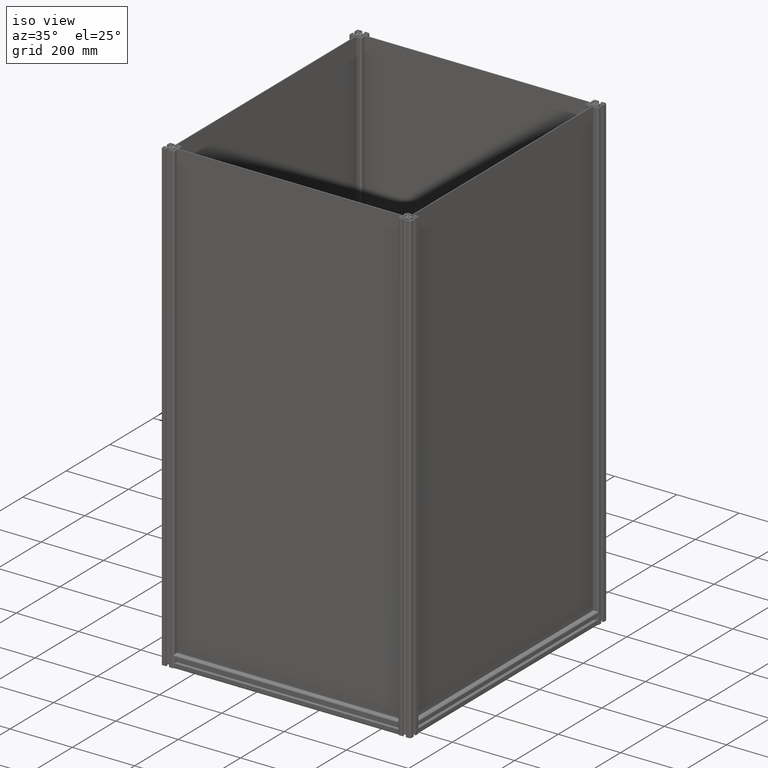
[diagram: clean part render]
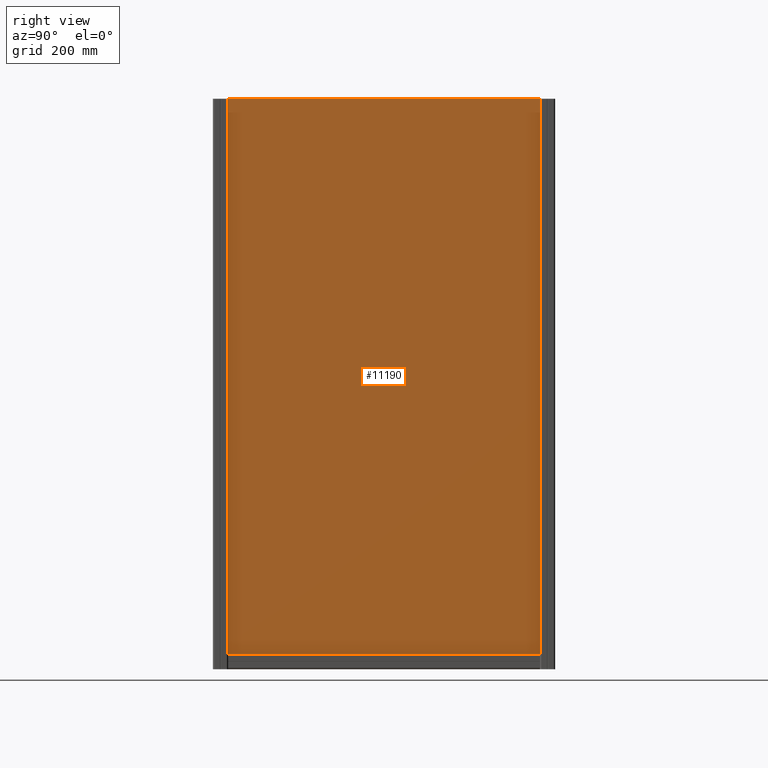
[diagram: tour spotlight — one face highlighted and labeled with its STEP entity id]
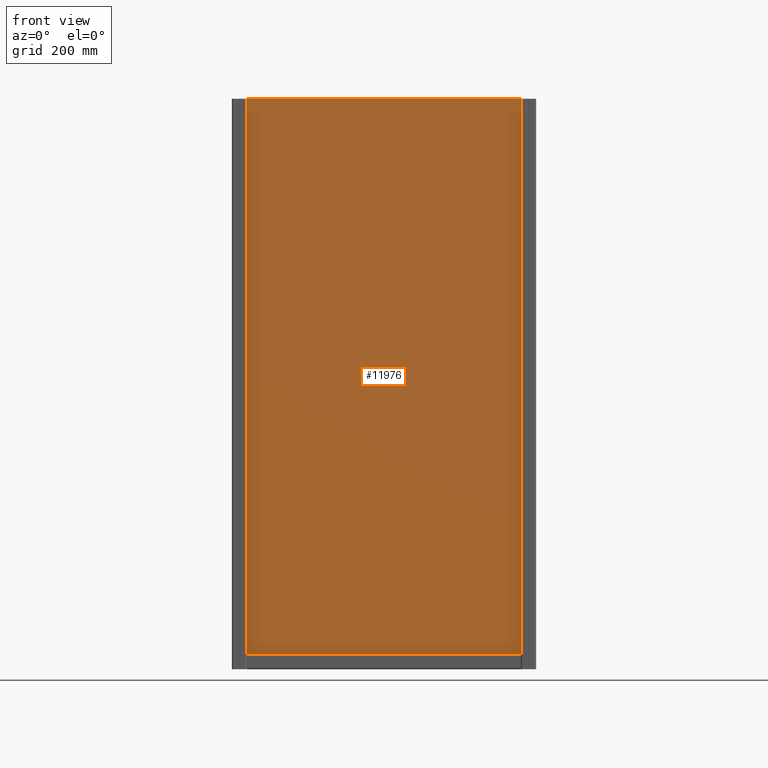
[diagram: tour spotlight — one face highlighted and labeled with its STEP entity id]
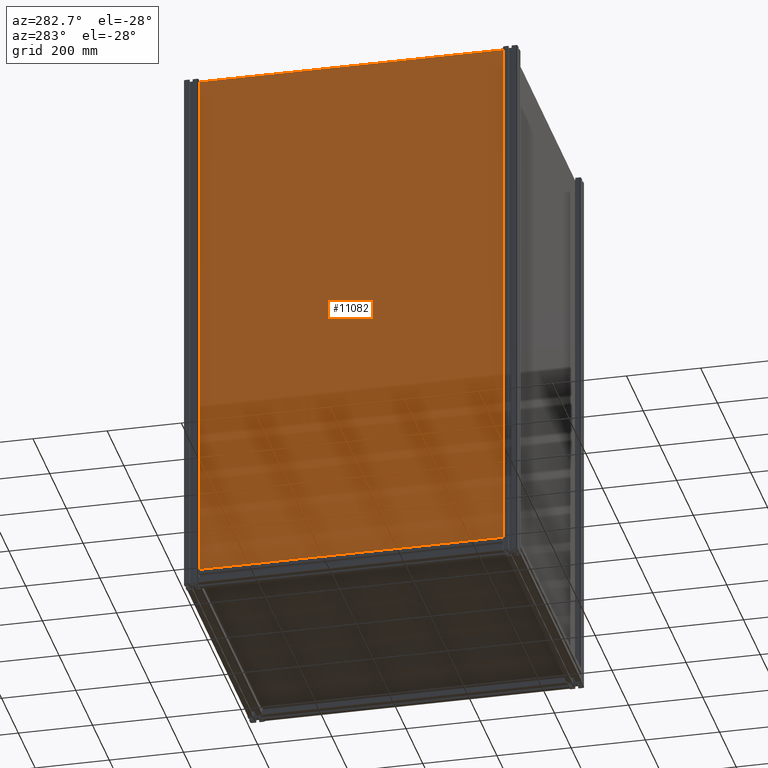
[diagram: tour spotlight — one face highlighted and labeled with its STEP entity id]
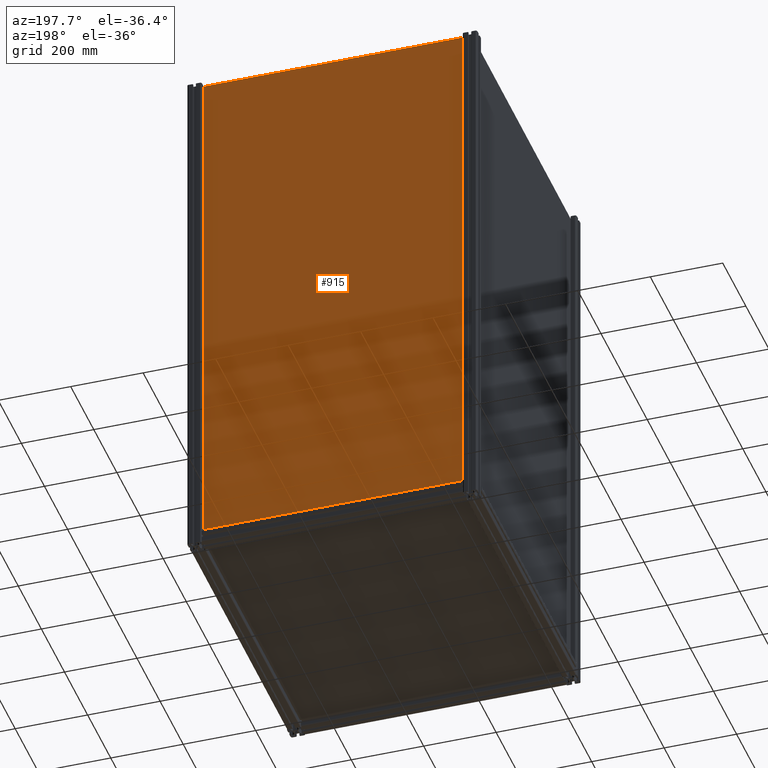
[diagram: tour spotlight — one face highlighted and labeled with its STEP entity id]
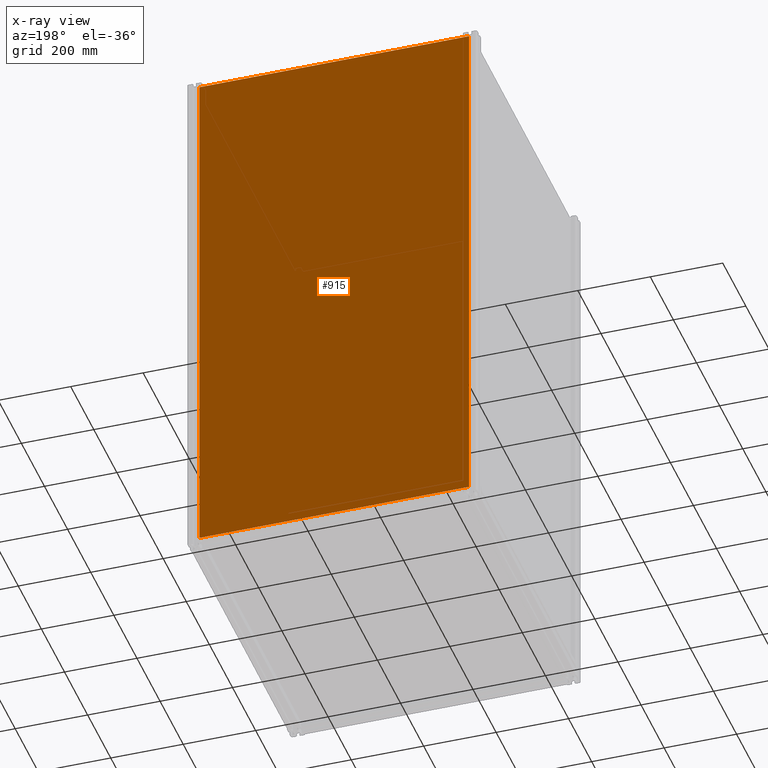
[diagram: x-ray of the same camera — body ghosted, this tour face saturated]
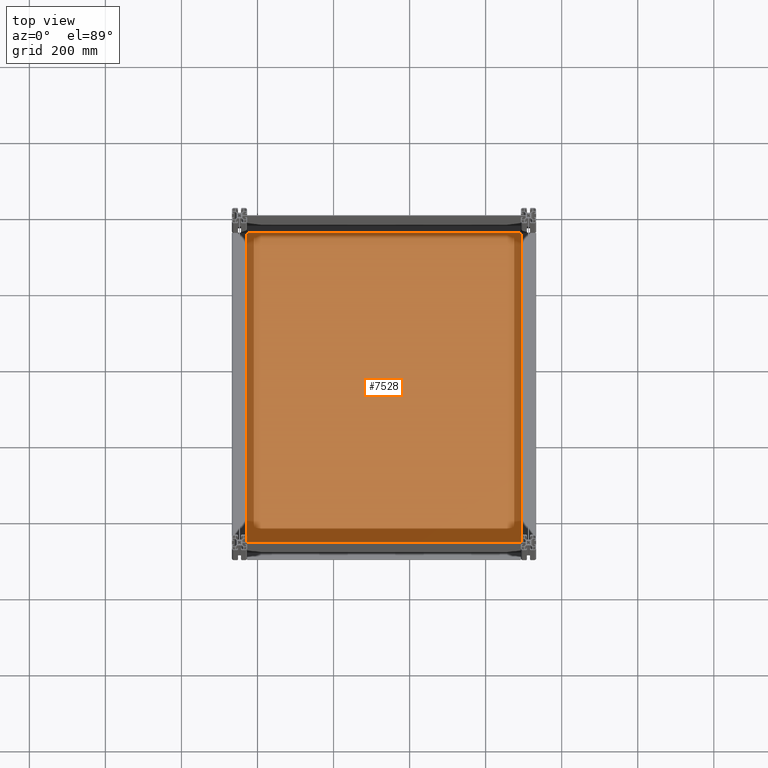
[diagram: tour spotlight — one face highlighted and labeled with its STEP entity id]
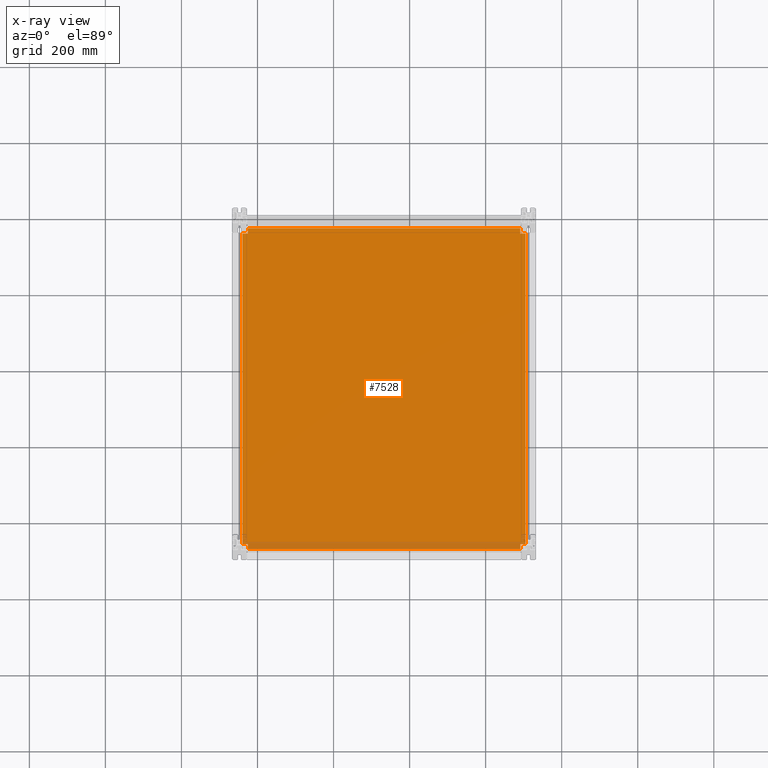
[diagram: x-ray of the same camera — body ghosted, this tour face saturated]
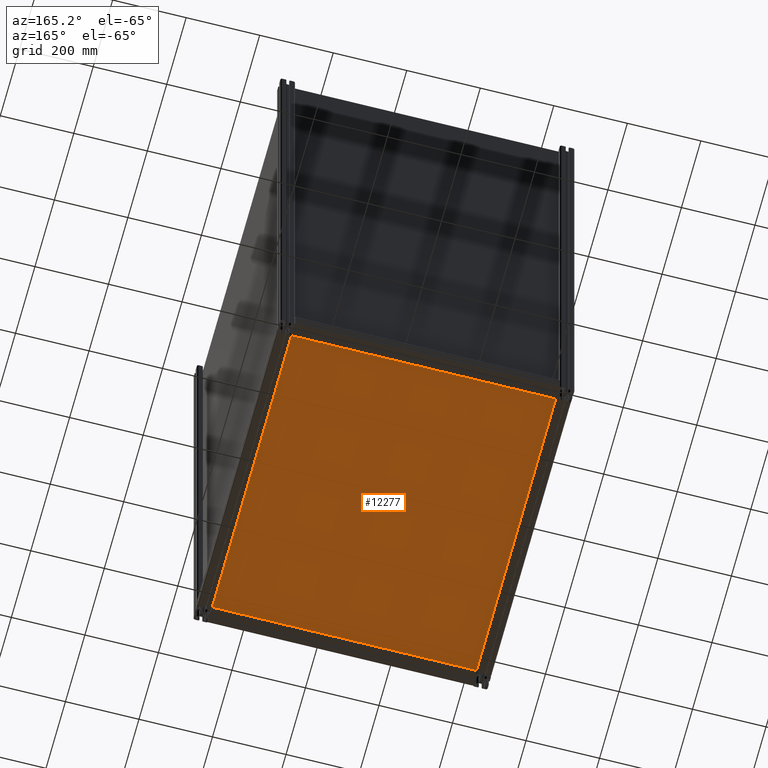
[diagram: tour spotlight — one face highlighted and labeled with its STEP entity id]
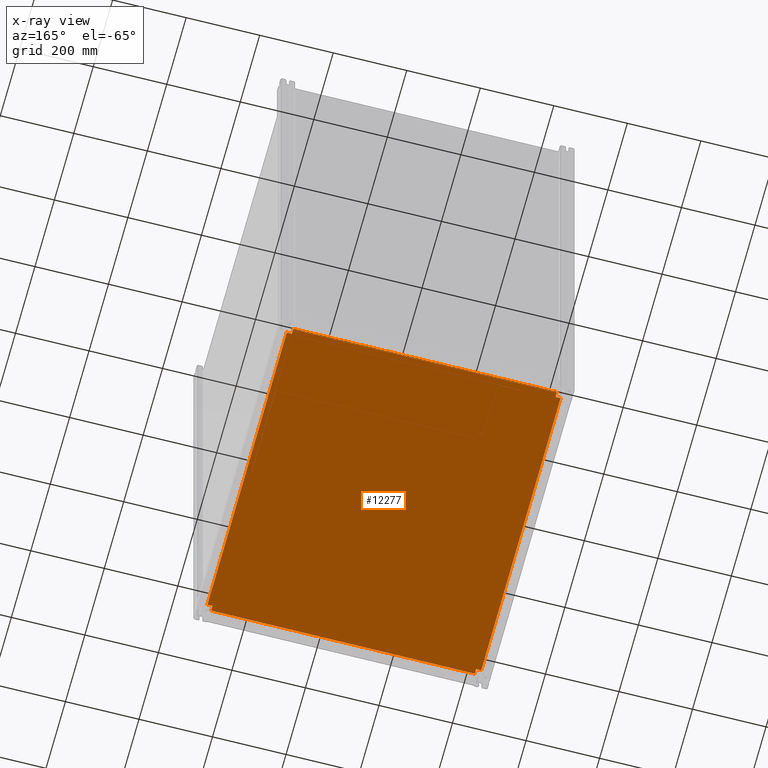
[diagram: x-ray of the same camera — body ghosted, this tour face saturated]
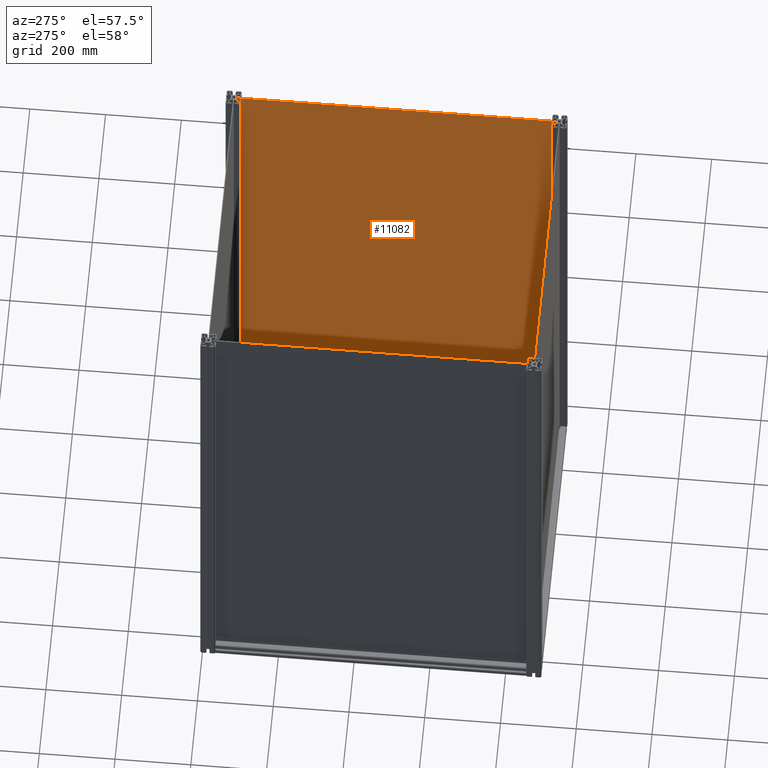
[diagram: tour spotlight — one face highlighted and labeled with its STEP entity id]
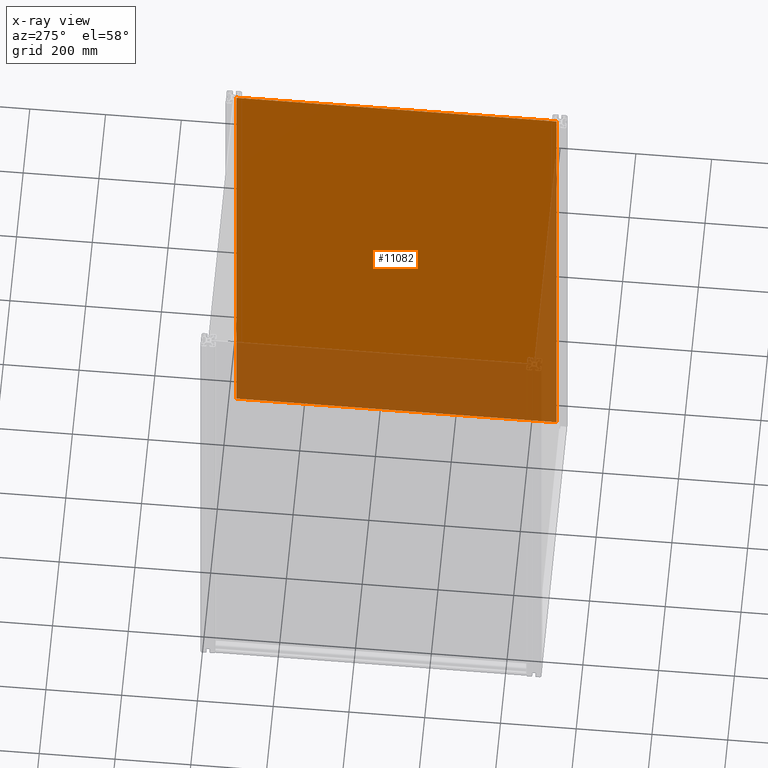
[diagram: x-ray of the same camera — body ghosted, this tour face saturated]
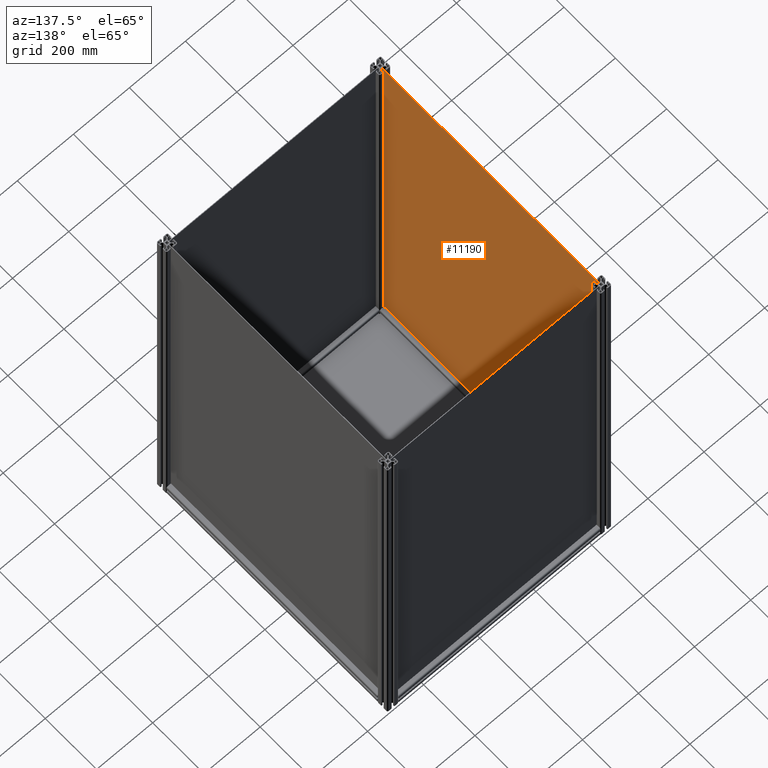
[diagram: tour spotlight — one face highlighted and labeled with its STEP entity id]
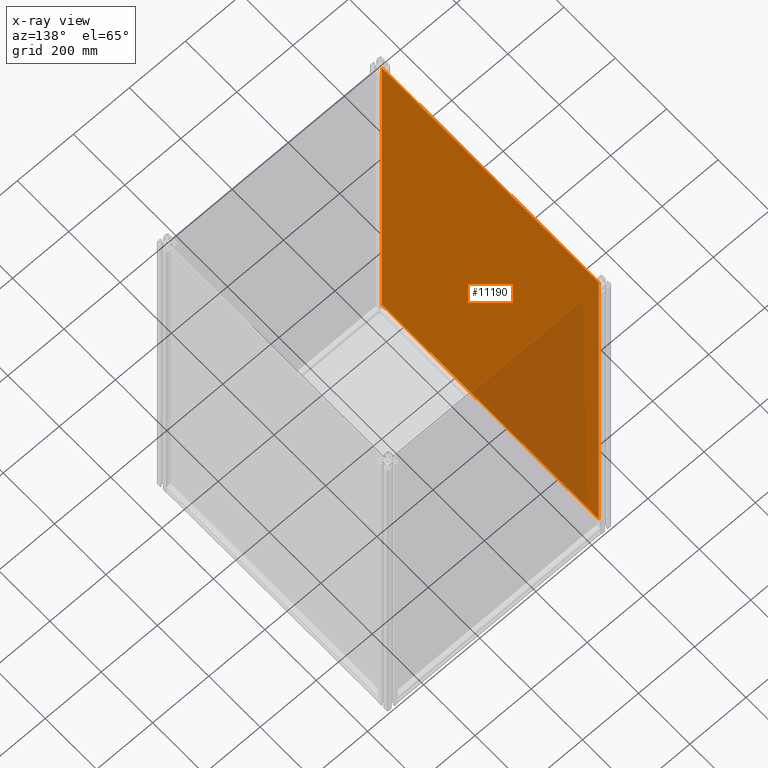
[diagram: x-ray of the same camera — body ghosted, this tour face saturated]
A machine part: a face-by-face anatomy tour. The part has 1230 B-rep faces; the first image is the clean iso view, then the 8 largest visible faces are spotlighted one at a time (largest first), each with its STEP entity span.

Face 1 — right view, entity #11190. In plain terms, the highlighted planar face has unit normal (1, 0, 0).
Definition (entity closure, byte-faithful):
#148 = DIRECTION ( 'NONE',  ( 0.000000000000000000, -1.000000000000000000, 0.000000000000000000 ) ) ;
#404 = EDGE_CURVE ( 'NONE', #16477, #8517, #14682, .T. ) ;
#475 = VERTEX_POINT ( 'NONE', #1220 ) ;
#1220 = CARTESIAN_POINT ( 'NONE',  ( -600.7269624573376632, -1214.526962457337504, 0.000000000000000000 ) ) ;
#1793 = ORIENTED_EDGE ( 'NONE', *, *, #5691, .T. ) ;
#2107 = AXIS2_PLACEMENT_3D ( 'NONE', #5399, #7998, #9301 ) ;
#2956 = ORIENTED_EDGE ( 'NONE', *, *, #3934, .T. ) ;
#3006 = VECTOR ( 'NONE', #8250, 1000.000000000000000 ) ;
#3222 = VECTOR ( 'NONE', #3816, 1000.000000000000000 ) ;
#3816 = DIRECTION ( 'NONE',  ( -1.000000000000000000, 0.000000000000000000, 0.000000000000000000 ) ) ;
#3934 = EDGE_CURVE ( 'NONE', #8517, #475, #4713, .T. ) ;
#4125 = CARTESIAN_POINT ( 'NONE',  ( 244.0730375426620924, 257.8730375426625301, 0.000000000000000000 ) ) ;
#4181 = PLANE ( 'NONE',  #2107 ) ;
#4713 = LINE ( 'NONE', #9331, #10244 ) ;
#5037 = CARTESIAN_POINT ( 'NONE',  ( -600.7269624573376632, -1214.526962457337504, 0.000000000000000000 ) ) ;
#5202 = EDGE_LOOP ( 'NONE', ( #7854, #14146, #2956, #1793 ) ) ;
#5399 = CARTESIAN_POINT ( 'NONE',  ( 0.000000000000000000, 0.000000000000000000, 0.000000000000000000 ) ) ;
#5691 = EDGE_CURVE ( 'NONE', #475, #7600, #13976, .T. ) ;
#5938 = CARTESIAN_POINT ( 'NONE',  ( 244.0730375426622913, -1214.526962457337504, 0.000000000000000000 ) ) ;
#6289 = LINE ( 'NONE', #15047, #11665 ) ;
#7600 = VERTEX_POINT ( 'NONE', #5938 ) ;
#7854 = ORIENTED_EDGE ( 'NONE', *, *, #8125, .T. ) ;
#7998 = DIRECTION ( 'NONE',  ( 0.000000000000000000, 0.000000000000000000, 1.000000000000000000 ) ) ;
#8125 = EDGE_CURVE ( 'NONE', #7600, #16477, #6289, .T. ) ;
#8250 = DIRECTION ( 'NONE',  ( 1.000000000000000000, 0.000000000000000000, 0.000000000000000000 ) ) ;
#8517 = VERTEX_POINT ( 'NONE', #12385 ) ;
#9301 = DIRECTION ( 'NONE',  ( 1.000000000000000000, 0.000000000000000000, 0.000000000000000000 ) ) ;
#9331 = CARTESIAN_POINT ( 'NONE',  ( -600.7269624573378906, 257.8730375426625301, 0.000000000000000000 ) ) ;
#10244 = VECTOR ( 'NONE', #148, 1000.000000000000000 ) ;
#11190 = ADVANCED_FACE ( 'NONE', ( #14982 ), #4181, .T. ) ;
#11665 = VECTOR ( 'NONE', #16253, 1000.000000000000000 ) ;
#12385 = CARTESIAN_POINT ( 'NONE',  ( -600.7269624573378906, 257.8730375426625301, 0.000000000000000000 ) ) ;
#13976 = LINE ( 'NONE', #5037, #3006 ) ;
#14146 = ORIENTED_EDGE ( 'NONE', *, *, #404, .T. ) ;
#14682 = LINE ( 'NONE', #15192, #3222 ) ;
#14982 = FACE_OUTER_BOUND ( 'NONE', #5202, .T. ) ;
#15047 = CARTESIAN_POINT ( 'NONE',  ( 244.0730375426620924, 257.8730375426625301, 0.000000000000000000 ) ) ;
#15192 = CARTESIAN_POINT ( 'NONE',  ( -600.7269624573378906, 257.8730375426625301, 0.000000000000000000 ) ) ;
#16253 = DIRECTION ( 'NONE',  ( -1.319539726361059477E-16, 1.000000000000000000, -0.000000000000000000 ) ) ;
#16477 = VERTEX_POINT ( 'NONE', #4125 ) ;

Face 2 — front view, entity #11976. In plain terms, the highlighted planar face has unit normal (0, 1, 0).
Definition (entity closure, byte-faithful):
#192 = PLANE ( 'NONE',  #12726 ) ;
#1091 = CARTESIAN_POINT ( 'NONE',  ( -600.7269624573378906, 257.8730375426625301, -2.000000000000000000 ) ) ;
#1521 = ORIENTED_EDGE ( 'NONE', *, *, #6502, .F. ) ;
#1592 = ORIENTED_EDGE ( 'NONE', *, *, #6194, .T. ) ;
#2393 = DIRECTION ( 'NONE',  ( -1.000000000000000000, 0.000000000000000000, 0.000000000000000000 ) ) ;
#3443 = DIRECTION ( 'NONE',  ( -1.000000000000000000, 0.000000000000000000, 0.000000000000000000 ) ) ;
#3491 = LINE ( 'NONE', #8691, #14602 ) ;
#3789 = CARTESIAN_POINT ( 'NONE',  ( -28.32696245733845686, -1214.526962457337504, -2.000000000000000000 ) ) ;
#3914 = VECTOR ( 'NONE', #4998, 1000.000000000000000 ) ;
#4016 = DIRECTION ( 'NONE',  ( 0.000000000000000000, 0.000000000000000000, 1.000000000000000000 ) ) ;
#4301 = VERTEX_POINT ( 'NONE', #3789 ) ;
#4860 = VECTOR ( 'NONE', #6814, 1000.000000000000000 ) ;
#4998 = DIRECTION ( 'NONE',  ( 1.508045401555496405E-16, 1.000000000000000000, -0.000000000000000000 ) ) ;
#6194 = EDGE_CURVE ( 'NONE', #13238, #10604, #15321, .T. ) ;
#6343 = VERTEX_POINT ( 'NONE', #12997 ) ;
#6502 = EDGE_CURVE ( 'NONE', #4301, #6343, #9994, .T. ) ;
#6750 = VECTOR ( 'NONE', #3443, 1000.000000000000000 ) ;
#6814 = DIRECTION ( 'NONE',  ( -1.117974313196651756E-16, 1.000000000000000000, 0.000000000000000000 ) ) ;
#6919 = LINE ( 'NONE', #1091, #6750 ) ;
#7178 = CARTESIAN_POINT ( 'NONE',  ( -773.1269624573380952, 257.8730375426625301, -2.000000000000000000 ) ) ;
#7442 = ORIENTED_EDGE ( 'NONE', *, *, #9760, .F. ) ;
#7487 = ORIENTED_EDGE ( 'NONE', *, *, #14082, .T. ) ;
#8691 = CARTESIAN_POINT ( 'NONE',  ( -28.32696245733845686, -1214.526962457337504, -2.000000000000000000 ) ) ;
#9141 = DIRECTION ( 'NONE',  ( 1.000000000000000000, 0.000000000000000000, 0.000000000000000000 ) ) ;
#9760 = EDGE_CURVE ( 'NONE', #6343, #10604, #6919, .T. ) ;
#9948 = EDGE_LOOP ( 'NONE', ( #1592, #7442, #1521, #7487 ) ) ;
#9994 = LINE ( 'NONE', #10221, #4860 ) ;
#10221 = CARTESIAN_POINT ( 'NONE',  ( -28.32696245733819751, 257.8730375426625301, -2.000000000000000000 ) ) ;
#10604 = VERTEX_POINT ( 'NONE', #12556 ) ;
#10699 = CARTESIAN_POINT ( 'NONE',  ( -773.1269624573383226, -1214.526962457337504, -2.000000000000000000 ) ) ;
#11255 = FACE_OUTER_BOUND ( 'NONE', #9948, .T. ) ;
#11923 = CARTESIAN_POINT ( 'NONE',  ( 0.000000000000000000, 0.000000000000000000, -2.000000000000000000 ) ) ;
#11976 = ADVANCED_FACE ( 'NONE', ( #11255 ), #192, .F. ) ;
#12556 = CARTESIAN_POINT ( 'NONE',  ( -773.1269624573380952, 257.8730375426625301, -2.000000000000000000 ) ) ;
#12726 = AXIS2_PLACEMENT_3D ( 'NONE', #11923, #4016, #9141 ) ;
#12997 = CARTESIAN_POINT ( 'NONE',  ( -28.32696245733819751, 257.8730375426625301, -2.000000000000000000 ) ) ;
#13238 = VERTEX_POINT ( 'NONE', #10699 ) ;
#14082 = EDGE_CURVE ( 'NONE', #4301, #13238, #3491, .T. ) ;
#14602 = VECTOR ( 'NONE', #2393, 1000.000000000000000 ) ;
#15321 = LINE ( 'NONE', #7178, #3914 ) ;

Face 3 — auxiliary view, entity #11082. In plain terms, the highlighted planar face has unit normal (1, 0, 0).
Definition (entity closure, byte-faithful):
#608 = CARTESIAN_POINT ( 'NONE',  ( -600.7269624573376632, -1214.526962457337504, -2.000000000000001776 ) ) ;
#1062 = AXIS2_PLACEMENT_3D ( 'NONE', #14311, #6485, #5289 ) ;
#1610 = CARTESIAN_POINT ( 'NONE',  ( 244.0730375426620924, 257.8730375426625301, -2.000000000000001776 ) ) ;
#2019 = CARTESIAN_POINT ( 'NONE',  ( -600.7269624573376632, -1214.526962457337504, -2.000000000000001776 ) ) ;
#2226 = DIRECTION ( 'NONE',  ( 0.000000000000000000, -1.000000000000000000, 0.000000000000000000 ) ) ;
#2728 = EDGE_CURVE ( 'NONE', #13610, #15945, #13859, .T. ) ;
#3709 = LINE ( 'NONE', #10942, #9014 ) ;
#3715 = LINE ( 'NONE', #7875, #9248 ) ;
#3818 = EDGE_CURVE ( 'NONE', #15216, #13610, #16176, .T. ) ;
#3832 = CARTESIAN_POINT ( 'NONE',  ( 244.0730375426622913, -1214.526962457337504, -2.000000000000001776 ) ) ;
#4032 = DIRECTION ( 'NONE',  ( -1.000000000000000000, 0.000000000000000000, 0.000000000000000000 ) ) ;
#4717 = DIRECTION ( 'NONE',  ( -1.000000000000000000, 0.000000000000000000, 0.000000000000000000 ) ) ;
#4867 = VECTOR ( 'NONE', #6737, 1000.000000000000000 ) ;
#5289 = DIRECTION ( 'NONE',  ( 1.000000000000000000, 0.000000000000000000, 0.000000000000000000 ) ) ;
#5883 = EDGE_CURVE ( 'NONE', #14830, #15945, #3709, .T. ) ;
#6485 = DIRECTION ( 'NONE',  ( 0.000000000000000000, 0.000000000000000000, 1.000000000000000000 ) ) ;
#6737 = DIRECTION ( 'NONE',  ( 1.319539726361059477E-16, -1.000000000000000000, 0.000000000000000000 ) ) ;
#7597 = EDGE_LOOP ( 'NONE', ( #13442, #8369, #14359, #7999 ) ) ;
#7699 = PLANE ( 'NONE',  #1062 ) ;
#7875 = CARTESIAN_POINT ( 'NONE',  ( -600.7269624573378906, 257.8730375426625301, -2.000000000000000000 ) ) ;
#7999 = ORIENTED_EDGE ( 'NONE', *, *, #5883, .F. ) ;
#8211 = VECTOR ( 'NONE', #4717, 1000.000000000000000 ) ;
#8369 = ORIENTED_EDGE ( 'NONE', *, *, #3818, .T. ) ;
#8406 = CARTESIAN_POINT ( 'NONE',  ( -600.7269624573378906, 257.8730375426625301, -2.000000000000000000 ) ) ;
#9014 = VECTOR ( 'NONE', #2226, 1000.000000000000000 ) ;
#9248 = VECTOR ( 'NONE', #4032, 1000.000000000000000 ) ;
#10942 = CARTESIAN_POINT ( 'NONE',  ( -600.7269624573378906, 257.8730375426625301, -2.000000000000000000 ) ) ;
#11021 = EDGE_CURVE ( 'NONE', #15216, #14830, #3715, .T. ) ;
#11082 = ADVANCED_FACE ( 'NONE', ( #14952 ), #7699, .F. ) ;
#13442 = ORIENTED_EDGE ( 'NONE', *, *, #11021, .F. ) ;
#13610 = VERTEX_POINT ( 'NONE', #3832 ) ;
#13859 = LINE ( 'NONE', #608, #8211 ) ;
#14311 = CARTESIAN_POINT ( 'NONE',  ( 0.000000000000000000, 0.000000000000000000, -2.000000000000000000 ) ) ;
#14359 = ORIENTED_EDGE ( 'NONE', *, *, #2728, .T. ) ;
#14830 = VERTEX_POINT ( 'NONE', #8406 ) ;
#14952 = FACE_OUTER_BOUND ( 'NONE', #7597, .T. ) ;
#15216 = VERTEX_POINT ( 'NONE', #16476 ) ;
#15945 = VERTEX_POINT ( 'NONE', #2019 ) ;
#16176 = LINE ( 'NONE', #1610, #4867 ) ;
#16476 = CARTESIAN_POINT ( 'NONE',  ( 244.0730375426620924, 257.8730375426625301, -2.000000000000001776 ) ) ;

Face 4 — auxiliary view, entity #915. An x-ray twin of the same camera follows (body ghosted, this face saturated) — the face is partly hidden behind the body. In plain terms, the highlighted planar face has unit normal (0, 1, 0).
Definition (entity closure, byte-faithful):
#757 = EDGE_CURVE ( 'NONE', #15804, #3437, #9700, .T. ) ;
#835 = DIRECTION ( 'NONE',  ( -1.000000000000000000, 0.000000000000000000, 0.000000000000000000 ) ) ;
#915 = ADVANCED_FACE ( 'NONE', ( #1769 ), #1994, .T. ) ;
#1769 = FACE_OUTER_BOUND ( 'NONE', #12769, .T. ) ;
#1817 = ORIENTED_EDGE ( 'NONE', *, *, #2600, .T. ) ;
#1994 = PLANE ( 'NONE',  #12405 ) ;
#2359 = CARTESIAN_POINT ( 'NONE',  ( -28.32696245733819751, 257.8730375426625301, 0.000000000000000000 ) ) ;
#2477 = VECTOR ( 'NONE', #11883, 1000.000000000000000 ) ;
#2504 = ORIENTED_EDGE ( 'NONE', *, *, #13893, .T. ) ;
#2600 = EDGE_CURVE ( 'NONE', #15431, #3437, #13492, .T. ) ;
#3238 = CARTESIAN_POINT ( 'NONE',  ( 0.000000000000000000, 0.000000000000000000, 0.000000000000000000 ) ) ;
#3437 = VERTEX_POINT ( 'NONE', #13404 ) ;
#4046 = CARTESIAN_POINT ( 'NONE',  ( -773.1269624573383226, -1214.526962457337504, 0.000000000000000000 ) ) ;
#5785 = DIRECTION ( 'NONE',  ( 0.000000000000000000, 0.000000000000000000, 1.000000000000000000 ) ) ;
#6088 = CARTESIAN_POINT ( 'NONE',  ( -28.32696245733845686, -1214.526962457337504, 0.000000000000000000 ) ) ;
#6738 = CARTESIAN_POINT ( 'NONE',  ( -600.7269624573378906, 257.8730375426625301, 0.000000000000000000 ) ) ;
#7127 = DIRECTION ( 'NONE',  ( 1.000000000000000000, 0.000000000000000000, 0.000000000000000000 ) ) ;
#7402 = ORIENTED_EDGE ( 'NONE', *, *, #757, .F. ) ;
#9044 = VECTOR ( 'NONE', #16448, 1000.000000000000000 ) ;
#9700 = LINE ( 'NONE', #12061, #15164 ) ;
#11883 = DIRECTION ( 'NONE',  ( -1.000000000000000000, 0.000000000000000000, 0.000000000000000000 ) ) ;
#12061 = CARTESIAN_POINT ( 'NONE',  ( -773.1269624573380952, 257.8730375426625301, 0.000000000000000000 ) ) ;
#12405 = AXIS2_PLACEMENT_3D ( 'NONE', #3238, #5785, #7127 ) ;
#12763 = CARTESIAN_POINT ( 'NONE',  ( -28.32696245733845686, -1214.526962457337504, 0.000000000000000000 ) ) ;
#12769 = EDGE_LOOP ( 'NONE', ( #1817, #7402, #13167, #2504 ) ) ;
#13167 = ORIENTED_EDGE ( 'NONE', *, *, #15254, .F. ) ;
#13404 = CARTESIAN_POINT ( 'NONE',  ( -773.1269624573380952, 257.8730375426625301, 0.000000000000000000 ) ) ;
#13492 = LINE ( 'NONE', #6738, #2477 ) ;
#13893 = EDGE_CURVE ( 'NONE', #15044, #15431, #15095, .T. ) ;
#13900 = VECTOR ( 'NONE', #835, 1000.000000000000000 ) ;
#14153 = CARTESIAN_POINT ( 'NONE',  ( -28.32696245733819751, 257.8730375426625301, 0.000000000000000000 ) ) ;
#14702 = LINE ( 'NONE', #6088, #13900 ) ;
#15044 = VERTEX_POINT ( 'NONE', #12763 ) ;
#15095 = LINE ( 'NONE', #2359, #9044 ) ;
#15164 = VECTOR ( 'NONE', #15889, 1000.000000000000000 ) ;
#15254 = EDGE_CURVE ( 'NONE', #15044, #15804, #14702, .T. ) ;
#15431 = VERTEX_POINT ( 'NONE', #14153 ) ;
#15804 = VERTEX_POINT ( 'NONE', #4046 ) ;
#15889 = DIRECTION ( 'NONE',  ( 1.508045401555496405E-16, 1.000000000000000000, -0.000000000000000000 ) ) ;
#16448 = DIRECTION ( 'NONE',  ( -1.117974313196651756E-16, 1.000000000000000000, 0.000000000000000000 ) ) ;

Face 5 — top view, entity #7528. An x-ray twin of the same camera follows (body ghosted, this face saturated) — the face is partly hidden behind the body. In plain terms, the highlighted planar face has unit normal (0, 0, -1).
Definition (entity closure, byte-faithful):
#698 = ORIENTED_EDGE ( 'NONE', *, *, #15027, .T. ) ;
#994 = VERTEX_POINT ( 'NONE', #11274 ) ;
#1080 = ORIENTED_EDGE ( 'NONE', *, *, #1408, .F. ) ;
#1094 = CARTESIAN_POINT ( 'NONE',  ( 130.0730375426619787, 243.8730375426625301, -2.000000000000000000 ) ) ;
#1170 = DIRECTION ( 'NONE',  ( 0.000000000000000000, -1.000000000000000000, 0.000000000000000000 ) ) ;
#1187 = CARTESIAN_POINT ( 'NONE',  ( 0.000000000000000000, 243.8730375426625301, -2.000000000000000000 ) ) ;
#1265 = VECTOR ( 'NONE', #4548, 1000.000000000000000 ) ;
#1324 = LINE ( 'NONE', #12489, #6968 ) ;
#1394 = LINE ( 'NONE', #4956, #6674 ) ;
#1408 = EDGE_CURVE ( 'NONE', #7529, #13920, #6251, .T. ) ;
#1663 = EDGE_CURVE ( 'NONE', #994, #4091, #6386, .T. ) ;
#1728 = EDGE_CURVE ( 'NONE', #7077, #11722, #1394, .T. ) ;
#2224 = DIRECTION ( 'NONE',  ( 0.000000000000000000, -1.000000000000000000, 0.000000000000000000 ) ) ;
#2347 = DIRECTION ( 'NONE',  ( 0.000000000000000000, 1.000000000000000000, 0.000000000000000000 ) ) ;
#2498 = DIRECTION ( 'NONE',  ( 1.000000000000000000, 0.000000000000000000, -0.000000000000000000 ) ) ;
#2594 = CARTESIAN_POINT ( 'NONE',  ( -586.7269624573378906, 0.000000000000000000, -2.000000000000000000 ) ) ;
#3091 = CARTESIAN_POINT ( 'NONE',  ( 130.0730375426619787, -586.9269624573374813, -2.000000000000001776 ) ) ;
#3141 = VECTOR ( 'NONE', #15128, 1000.000000000000000 ) ;
#3324 = LINE ( 'NONE', #11931, #8876 ) ;
#3578 = CARTESIAN_POINT ( 'NONE',  ( 0.000000000000000000, 243.8730375426625301, -2.000000000000000000 ) ) ;
#3779 = CARTESIAN_POINT ( 'NONE',  ( 130.0730375426619787, 0.000000000000000000, -2.000000000000000000 ) ) ;
#3948 = DIRECTION ( 'NONE',  ( 0.000000000000000000, 0.000000000000000000, 1.000000000000000000 ) ) ;
#4091 = VERTEX_POINT ( 'NONE', #13305 ) ;
#4146 = CARTESIAN_POINT ( 'NONE',  ( -600.7269624573378906, 257.8730375426625301, -2.000000000000000000 ) ) ;
#4151 = VECTOR ( 'NONE', #10176, 1000.000000000000000 ) ;
#4154 = CARTESIAN_POINT ( 'NONE',  ( -600.7269624573378906, 243.8730375426625301, -2.000000000000000000 ) ) ;
#4210 = CARTESIAN_POINT ( 'NONE',  ( -586.7269624573378906, 257.8730375426625301, -2.000000000000000000 ) ) ;
#4258 = LINE ( 'NONE', #7654, #4151 ) ;
#4548 = DIRECTION ( 'NONE',  ( 1.000000000000000000, 0.000000000000000000, -0.000000000000000000 ) ) ;
#4652 = CARTESIAN_POINT ( 'NONE',  ( 144.0730375426619787, 257.8730375426625301, -2.000000000000001776 ) ) ;
#4852 = LINE ( 'NONE', #2594, #15805 ) ;
#4956 = CARTESIAN_POINT ( 'NONE',  ( 130.0730375426619787, 0.000000000000000000, -2.000000000000000000 ) ) ;
#5309 = CARTESIAN_POINT ( 'NONE',  ( -586.7269624573378906, 0.000000000000000000, -2.000000000000000000 ) ) ;
#5449 = VECTOR ( 'NONE', #2347, 1000.000000000000000 ) ;
#5480 = EDGE_LOOP ( 'NONE', ( #1080, #7255, #6113, #11712, #7538, #11598, #7080, #5491, #16236, #6053, #11941, #698 ) ) ;
#5491 = ORIENTED_EDGE ( 'NONE', *, *, #14518, .T. ) ;
#5868 = EDGE_CURVE ( 'NONE', #11036, #10411, #3324, .T. ) ;
#6053 = ORIENTED_EDGE ( 'NONE', *, *, #5868, .F. ) ;
#6113 = ORIENTED_EDGE ( 'NONE', *, *, #14494, .T. ) ;
#6251 = LINE ( 'NONE', #4146, #11864 ) ;
#6319 = VERTEX_POINT ( 'NONE', #15552 ) ;
#6386 = LINE ( 'NONE', #4652, #11947 ) ;
#6459 = FACE_OUTER_BOUND ( 'NONE', #5480, .T. ) ;
#6627 = CARTESIAN_POINT ( 'NONE',  ( -586.7269624573378906, 243.8730375426625301, -2.000000000000000000 ) ) ;
#6674 = VECTOR ( 'NONE', #7595, 1000.000000000000000 ) ;
#6905 = DIRECTION ( 'NONE',  ( 0.000000000000000000, -1.000000000000000000, 0.000000000000000000 ) ) ;
#6922 = VERTEX_POINT ( 'NONE', #10066 ) ;
#6951 = LINE ( 'NONE', #3578, #1265 ) ;
#6968 = VECTOR ( 'NONE', #13758, 1000.000000000000000 ) ;
#7077 = VERTEX_POINT ( 'NONE', #7092 ) ;
#7080 = ORIENTED_EDGE ( 'NONE', *, *, #13713, .T. ) ;
#7092 = CARTESIAN_POINT ( 'NONE',  ( 130.0730375426619787, -572.9269624573374813, -2.000000000000000000 ) ) ;
#7255 = ORIENTED_EDGE ( 'NONE', *, *, #16396, .T. ) ;
#7528 = ADVANCED_FACE ( 'NONE', ( #6459 ), #9407, .F. ) ;
#7529 = VERTEX_POINT ( 'NONE', #16525 ) ;
#7538 = ORIENTED_EDGE ( 'NONE', *, *, #8193, .T. ) ;
#7595 = DIRECTION ( 'NONE',  ( 0.000000000000000000, -1.000000000000000000, 0.000000000000000000 ) ) ;
#7654 = CARTESIAN_POINT ( 'NONE',  ( 0.000000000000000000, -572.9269624573374813, -2.000000000000000000 ) ) ;
#7789 = DIRECTION ( 'NONE',  ( 1.000000000000000000, 0.000000000000000000, 0.000000000000000000 ) ) ;
#8193 = EDGE_CURVE ( 'NONE', #4091, #7077, #4258, .T. ) ;
#8306 = LINE ( 'NONE', #3779, #8333 ) ;
#8333 = VECTOR ( 'NONE', #1170, 1000.000000000000000 ) ;
#8678 = LINE ( 'NONE', #9526, #3141 ) ;
#8876 = VECTOR ( 'NONE', #6905, 1000.000000000000000 ) ;
#9407 = PLANE ( 'NONE',  #15993 ) ;
#9526 = CARTESIAN_POINT ( 'NONE',  ( -600.7269624573378906, -586.9269624573374813, -2.000000000000001776 ) ) ;
#9680 = LINE ( 'NONE', #1187, #15232 ) ;
#10066 = CARTESIAN_POINT ( 'NONE',  ( -586.7269624573378906, -572.9269624573374813, -2.000000000000000000 ) ) ;
#10091 = DIRECTION ( 'NONE',  ( 0.000000000000000000, 1.000000000000000000, 0.000000000000000000 ) ) ;
#10176 = DIRECTION ( 'NONE',  ( -1.000000000000000000, -0.000000000000000000, 0.000000000000000000 ) ) ;
#10215 = CARTESIAN_POINT ( 'NONE',  ( 0.000000000000000000, 0.000000000000000000, -2.000000000000000000 ) ) ;
#10411 = VERTEX_POINT ( 'NONE', #10985 ) ;
#10905 = VERTEX_POINT ( 'NONE', #1094 ) ;
#10958 = LINE ( 'NONE', #5309, #5449 ) ;
#10985 = CARTESIAN_POINT ( 'NONE',  ( -600.7269624573378906, -572.9269624573374813, -2.000000000000000000 ) ) ;
#11036 = VERTEX_POINT ( 'NONE', #4154 ) ;
#11274 = CARTESIAN_POINT ( 'NONE',  ( 144.0730375426619787, 243.8730375426625301, -2.000000000000001776 ) ) ;
#11598 = ORIENTED_EDGE ( 'NONE', *, *, #1728, .T. ) ;
#11712 = ORIENTED_EDGE ( 'NONE', *, *, #1663, .T. ) ;
#11722 = VERTEX_POINT ( 'NONE', #3091 ) ;
#11864 = VECTOR ( 'NONE', #14854, 1000.000000000000000 ) ;
#11931 = CARTESIAN_POINT ( 'NONE',  ( -600.7269624573378906, 257.8730375426625301, -2.000000000000000000 ) ) ;
#11941 = ORIENTED_EDGE ( 'NONE', *, *, #15613, .T. ) ;
#11947 = VECTOR ( 'NONE', #2224, 1000.000000000000000 ) ;
#12489 = CARTESIAN_POINT ( 'NONE',  ( 0.000000000000000000, -572.9269624573374813, -2.000000000000000000 ) ) ;
#13305 = CARTESIAN_POINT ( 'NONE',  ( 144.0730375426619787, -572.9269624573374813, -2.000000000000001776 ) ) ;
#13713 = EDGE_CURVE ( 'NONE', #11722, #6319, #8678, .T. ) ;
#13758 = DIRECTION ( 'NONE',  ( -1.000000000000000000, -0.000000000000000000, 0.000000000000000000 ) ) ;
#13904 = VERTEX_POINT ( 'NONE', #6627 ) ;
#13920 = VERTEX_POINT ( 'NONE', #4210 ) ;
#14494 = EDGE_CURVE ( 'NONE', #10905, #994, #9680, .T. ) ;
#14518 = EDGE_CURVE ( 'NONE', #6319, #6922, #4852, .T. ) ;
#14854 = DIRECTION ( 'NONE',  ( -1.000000000000000000, 0.000000000000000000, 0.000000000000000000 ) ) ;
#15027 = EDGE_CURVE ( 'NONE', #13904, #13920, #10958, .T. ) ;
#15128 = DIRECTION ( 'NONE',  ( -1.000000000000000000, 0.000000000000000000, 0.000000000000000000 ) ) ;
#15232 = VECTOR ( 'NONE', #2498, 1000.000000000000000 ) ;
#15552 = CARTESIAN_POINT ( 'NONE',  ( -586.7269624573378906, -586.9269624573374813, -2.000000000000001776 ) ) ;
#15613 = EDGE_CURVE ( 'NONE', #11036, #13904, #6951, .T. ) ;
#15684 = EDGE_CURVE ( 'NONE', #6922, #10411, #1324, .T. ) ;
#15805 = VECTOR ( 'NONE', #10091, 1000.000000000000000 ) ;
#15993 = AXIS2_PLACEMENT_3D ( 'NONE', #10215, #3948, #7789 ) ;
#16236 = ORIENTED_EDGE ( 'NONE', *, *, #15684, .T. ) ;
#16396 = EDGE_CURVE ( 'NONE', #7529, #10905, #8306, .T. ) ;
#16525 = CARTESIAN_POINT ( 'NONE',  ( 130.0730375426619787, 257.8730375426625301, -2.000000000000000000 ) ) ;

Face 6 — auxiliary view, entity #12277. An x-ray twin of the same camera follows (body ghosted, this face saturated) — the face is partly hidden behind the body. In plain terms, the highlighted planar face has unit normal (0, 0, -1).
Definition (entity closure, byte-faithful):
#112 = PLANE ( 'NONE',  #3041 ) ;
#259 = CARTESIAN_POINT ( 'NONE',  ( -600.7269624573378906, 243.8730375426625301, 0.000000000000000000 ) ) ;
#739 = LINE ( 'NONE', #13423, #6270 ) ;
#1145 = LINE ( 'NONE', #3873, #11992 ) ;
#1148 = ORIENTED_EDGE ( 'NONE', *, *, #14264, .F. ) ;
#1200 = VECTOR ( 'NONE', #15234, 1000.000000000000000 ) ;
#1420 = LINE ( 'NONE', #12548, #12524 ) ;
#1816 = LINE ( 'NONE', #8404, #1877 ) ;
#1877 = VECTOR ( 'NONE', #5921, 1000.000000000000000 ) ;
#1939 = VERTEX_POINT ( 'NONE', #3519 ) ;
#2026 = EDGE_CURVE ( 'NONE', #9263, #1939, #1420, .T. ) ;
#2234 = ORIENTED_EDGE ( 'NONE', *, *, #3410, .T. ) ;
#2281 = ORIENTED_EDGE ( 'NONE', *, *, #4017, .F. ) ;
#2325 = EDGE_CURVE ( 'NONE', #16010, #13176, #1816, .T. ) ;
#2745 = CARTESIAN_POINT ( 'NONE',  ( -600.7269624573378906, 243.8730375426625301, 0.000000000000000000 ) ) ;
#2860 = ORIENTED_EDGE ( 'NONE', *, *, #4796, .T. ) ;
#3041 = AXIS2_PLACEMENT_3D ( 'NONE', #13875, #12739, #7583 ) ;
#3410 = EDGE_CURVE ( 'NONE', #6398, #16040, #14953, .T. ) ;
#3519 = CARTESIAN_POINT ( 'NONE',  ( -600.7269624573378906, -572.9269624573374813, 0.000000000000000000 ) ) ;
#3859 = VECTOR ( 'NONE', #13189, 1000.000000000000000 ) ;
#3873 = CARTESIAN_POINT ( 'NONE',  ( -600.7269624573378906, 257.8730375426625301, 0.000000000000000000 ) ) ;
#4012 = DIRECTION ( 'NONE',  ( 1.000000000000000000, 0.000000000000000000, 0.000000000000000000 ) ) ;
#4017 = EDGE_CURVE ( 'NONE', #13493, #9292, #5487, .T. ) ;
#4332 = EDGE_CURVE ( 'NONE', #6398, #9263, #16407, .T. ) ;
#4498 = DIRECTION ( 'NONE',  ( -1.000000000000000000, -0.000000000000000000, -0.000000000000000000 ) ) ;
#4738 = VERTEX_POINT ( 'NONE', #13385 ) ;
#4796 = EDGE_CURVE ( 'NONE', #8652, #11730, #1145, .T. ) ;
#4814 = CARTESIAN_POINT ( 'NONE',  ( 130.0730375426619787, 257.8730375426625301, 0.000000000000000000 ) ) ;
#4916 = DIRECTION ( 'NONE',  ( -0.000000000000000000, 1.000000000000000000, -0.000000000000000000 ) ) ;
#5129 = CARTESIAN_POINT ( 'NONE',  ( 130.0730375426619787, 243.8730375426625301, 0.000000000000000000 ) ) ;
#5352 = VECTOR ( 'NONE', #4916, 1000.000000000000000 ) ;
#5354 = ORIENTED_EDGE ( 'NONE', *, *, #7413, .F. ) ;
#5392 = DIRECTION ( 'NONE',  ( 0.000000000000000000, -1.000000000000000000, 0.000000000000000000 ) ) ;
#5417 = ORIENTED_EDGE ( 'NONE', *, *, #4332, .F. ) ;
#5468 = CARTESIAN_POINT ( 'NONE',  ( 144.0730375426619787, 243.8730375426625301, 0.000000000000000000 ) ) ;
#5487 = LINE ( 'NONE', #259, #11146 ) ;
#5863 = DIRECTION ( 'NONE',  ( 0.000000000000000000, -1.000000000000000000, 0.000000000000000000 ) ) ;
#5921 = DIRECTION ( 'NONE',  ( -0.000000000000000000, 1.000000000000000000, -0.000000000000000000 ) ) ;
#5984 = EDGE_CURVE ( 'NONE', #13493, #1939, #14302, .T. ) ;
#6270 = VECTOR ( 'NONE', #5392, 1000.000000000000000 ) ;
#6398 = VERTEX_POINT ( 'NONE', #10253 ) ;
#6433 = LINE ( 'NONE', #11767, #1200 ) ;
#6778 = ORIENTED_EDGE ( 'NONE', *, *, #14570, .F. ) ;
#7032 = CARTESIAN_POINT ( 'NONE',  ( 144.0730375426619787, -572.9269624573374813, 0.000000000000000000 ) ) ;
#7188 = ORIENTED_EDGE ( 'NONE', *, *, #15302, .F. ) ;
#7413 = EDGE_CURVE ( 'NONE', #4738, #16040, #739, .T. ) ;
#7583 = DIRECTION ( 'NONE',  ( 1.000000000000000000, 0.000000000000000000, 0.000000000000000000 ) ) ;
#8371 = ORIENTED_EDGE ( 'NONE', *, *, #2026, .F. ) ;
#8404 = CARTESIAN_POINT ( 'NONE',  ( 144.0730375426619787, 257.8730375426625301, 0.000000000000000000 ) ) ;
#8545 = ORIENTED_EDGE ( 'NONE', *, *, #5984, .T. ) ;
#8622 = CARTESIAN_POINT ( 'NONE',  ( -600.7269624573378906, 257.8730375426625301, 0.000000000000000000 ) ) ;
#8652 = VERTEX_POINT ( 'NONE', #10743 ) ;
#8738 = EDGE_LOOP ( 'NONE', ( #1148, #2860, #7188, #2281, #8545, #8371, #5417, #2234, #5354, #13883, #8823, #6778 ) ) ;
#8823 = ORIENTED_EDGE ( 'NONE', *, *, #2325, .T. ) ;
#9126 = VECTOR ( 'NONE', #13780, 1000.000000000000000 ) ;
#9203 = CARTESIAN_POINT ( 'NONE',  ( -600.7269624573378906, -586.9269624573374813, 0.000000000000000000 ) ) ;
#9263 = VERTEX_POINT ( 'NONE', #14562 ) ;
#9292 = VERTEX_POINT ( 'NONE', #10780 ) ;
#9710 = LINE ( 'NONE', #4814, #15538 ) ;
#10205 = LINE ( 'NONE', #5129, #16250 ) ;
#10253 = CARTESIAN_POINT ( 'NONE',  ( -586.7269624573378906, -586.9269624573374813, 0.000000000000000000 ) ) ;
#10743 = CARTESIAN_POINT ( 'NONE',  ( 130.0730375426619787, 257.8730375426625301, 0.000000000000000000 ) ) ;
#10780 = CARTESIAN_POINT ( 'NONE',  ( -586.7269624573378906, 243.8730375426625301, 0.000000000000000000 ) ) ;
#11146 = VECTOR ( 'NONE', #15735, 1000.000000000000000 ) ;
#11548 = FACE_OUTER_BOUND ( 'NONE', #8738, .T. ) ;
#11650 = CARTESIAN_POINT ( 'NONE',  ( -586.7269624573378906, 257.8730375426625301, 0.000000000000000000 ) ) ;
#11730 = VERTEX_POINT ( 'NONE', #11650 ) ;
#11767 = CARTESIAN_POINT ( 'NONE',  ( 130.0730375426619787, -572.9269624573374813, 0.000000000000000000 ) ) ;
#11992 = VECTOR ( 'NONE', #15129, 1000.000000000000000 ) ;
#12277 = ADVANCED_FACE ( 'NONE', ( #11548 ), #112, .T. ) ;
#12453 = CARTESIAN_POINT ( 'NONE',  ( -586.7269624573378906, 257.8730375426625301, 0.000000000000000000 ) ) ;
#12524 = VECTOR ( 'NONE', #4498, 1000.000000000000000 ) ;
#12548 = CARTESIAN_POINT ( 'NONE',  ( -600.7269624573378906, -572.9269624573374813, 0.000000000000000000 ) ) ;
#12667 = EDGE_CURVE ( 'NONE', #16010, #4738, #6433, .T. ) ;
#12739 = DIRECTION ( 'NONE',  ( 0.000000000000000000, 0.000000000000000000, 1.000000000000000000 ) ) ;
#13176 = VERTEX_POINT ( 'NONE', #5468 ) ;
#13189 = DIRECTION ( 'NONE',  ( 1.000000000000000000, 0.000000000000000000, 0.000000000000000000 ) ) ;
#13385 = CARTESIAN_POINT ( 'NONE',  ( 130.0730375426619787, -572.9269624573374813, 0.000000000000000000 ) ) ;
#13423 = CARTESIAN_POINT ( 'NONE',  ( 130.0730375426619787, -572.9269624573374813, 0.000000000000000000 ) ) ;
#13493 = VERTEX_POINT ( 'NONE', #2745 ) ;
#13780 = DIRECTION ( 'NONE',  ( 0.000000000000000000, -1.000000000000000000, 0.000000000000000000 ) ) ;
#13875 = CARTESIAN_POINT ( 'NONE',  ( 0.000000000000000000, 0.000000000000000000, 0.000000000000000000 ) ) ;
#13883 = ORIENTED_EDGE ( 'NONE', *, *, #12667, .F. ) ;
#13944 = CARTESIAN_POINT ( 'NONE',  ( -586.7269624573378906, -572.9269624573374813, 0.000000000000000000 ) ) ;
#14112 = VECTOR ( 'NONE', #15035, 1000.000000000000000 ) ;
#14185 = LINE ( 'NONE', #12453, #14112 ) ;
#14264 = EDGE_CURVE ( 'NONE', #8652, #15106, #9710, .T. ) ;
#14302 = LINE ( 'NONE', #8622, #9126 ) ;
#14562 = CARTESIAN_POINT ( 'NONE',  ( -586.7269624573378906, -572.9269624573374813, 0.000000000000000000 ) ) ;
#14570 = EDGE_CURVE ( 'NONE', #15106, #13176, #10205, .T. ) ;
#14628 = CARTESIAN_POINT ( 'NONE',  ( 130.0730375426619787, -586.9269624573374813, 0.000000000000000000 ) ) ;
#14669 = CARTESIAN_POINT ( 'NONE',  ( 130.0730375426619787, 243.8730375426625301, 0.000000000000000000 ) ) ;
#14953 = LINE ( 'NONE', #9203, #3859 ) ;
#15035 = DIRECTION ( 'NONE',  ( -0.000000000000000000, 1.000000000000000000, -0.000000000000000000 ) ) ;
#15106 = VERTEX_POINT ( 'NONE', #14669 ) ;
#15129 = DIRECTION ( 'NONE',  ( -1.000000000000000000, 0.000000000000000000, 0.000000000000000000 ) ) ;
#15234 = DIRECTION ( 'NONE',  ( -1.000000000000000000, -0.000000000000000000, -0.000000000000000000 ) ) ;
#15302 = EDGE_CURVE ( 'NONE', #9292, #11730, #14185, .T. ) ;
#15538 = VECTOR ( 'NONE', #5863, 1000.000000000000000 ) ;
#15735 = DIRECTION ( 'NONE',  ( 1.000000000000000000, 0.000000000000000000, 0.000000000000000000 ) ) ;
#16010 = VERTEX_POINT ( 'NONE', #7032 ) ;
#16040 = VERTEX_POINT ( 'NONE', #14628 ) ;
#16250 = VECTOR ( 'NONE', #4012, 1000.000000000000000 ) ;
#16407 = LINE ( 'NONE', #13944, #5352 ) ;

Face 7 — auxiliary view, entity #11082. An x-ray twin of the same camera follows (body ghosted, this face saturated) — the face is partly hidden behind the body. In plain terms, the highlighted planar face has unit normal (1, 0, 0).
Definition (entity closure, byte-faithful):
#608 = CARTESIAN_POINT ( 'NONE',  ( -600.7269624573376632, -1214.526962457337504, -2.000000000000001776 ) ) ;
#1062 = AXIS2_PLACEMENT_3D ( 'NONE', #14311, #6485, #5289 ) ;
#1610 = CARTESIAN_POINT ( 'NONE',  ( 244.0730375426620924, 257.8730375426625301, -2.000000000000001776 ) ) ;
#2019 = CARTESIAN_POINT ( 'NONE',  ( -600.7269624573376632, -1214.526962457337504, -2.000000000000001776 ) ) ;
#2226 = DIRECTION ( 'NONE',  ( 0.000000000000000000, -1.000000000000000000, 0.000000000000000000 ) ) ;
#2728 = EDGE_CURVE ( 'NONE', #13610, #15945, #13859, .T. ) ;
#3709 = LINE ( 'NONE', #10942, #9014 ) ;
#3715 = LINE ( 'NONE', #7875, #9248 ) ;
#3818 = EDGE_CURVE ( 'NONE', #15216, #13610, #16176, .T. ) ;
#3832 = CARTESIAN_POINT ( 'NONE',  ( 244.0730375426622913, -1214.526962457337504, -2.000000000000001776 ) ) ;
#4032 = DIRECTION ( 'NONE',  ( -1.000000000000000000, 0.000000000000000000, 0.000000000000000000 ) ) ;
#4717 = DIRECTION ( 'NONE',  ( -1.000000000000000000, 0.000000000000000000, 0.000000000000000000 ) ) ;
#4867 = VECTOR ( 'NONE', #6737, 1000.000000000000000 ) ;
#5289 = DIRECTION ( 'NONE',  ( 1.000000000000000000, 0.000000000000000000, 0.000000000000000000 ) ) ;
#5883 = EDGE_CURVE ( 'NONE', #14830, #15945, #3709, .T. ) ;
#6485 = DIRECTION ( 'NONE',  ( 0.000000000000000000, 0.000000000000000000, 1.000000000000000000 ) ) ;
#6737 = DIRECTION ( 'NONE',  ( 1.319539726361059477E-16, -1.000000000000000000, 0.000000000000000000 ) ) ;
#7597 = EDGE_LOOP ( 'NONE', ( #13442, #8369, #14359, #7999 ) ) ;
#7699 = PLANE ( 'NONE',  #1062 ) ;
#7875 = CARTESIAN_POINT ( 'NONE',  ( -600.7269624573378906, 257.8730375426625301, -2.000000000000000000 ) ) ;
#7999 = ORIENTED_EDGE ( 'NONE', *, *, #5883, .F. ) ;
#8211 = VECTOR ( 'NONE', #4717, 1000.000000000000000 ) ;
#8369 = ORIENTED_EDGE ( 'NONE', *, *, #3818, .T. ) ;
#8406 = CARTESIAN_POINT ( 'NONE',  ( -600.7269624573378906, 257.8730375426625301, -2.000000000000000000 ) ) ;
#9014 = VECTOR ( 'NONE', #2226, 1000.000000000000000 ) ;
#9248 = VECTOR ( 'NONE', #4032, 1000.000000000000000 ) ;
#10942 = CARTESIAN_POINT ( 'NONE',  ( -600.7269624573378906, 257.8730375426625301, -2.000000000000000000 ) ) ;
#11021 = EDGE_CURVE ( 'NONE', #15216, #14830, #3715, .T. ) ;
#11082 = ADVANCED_FACE ( 'NONE', ( #14952 ), #7699, .F. ) ;
#13442 = ORIENTED_EDGE ( 'NONE', *, *, #11021, .F. ) ;
#13610 = VERTEX_POINT ( 'NONE', #3832 ) ;
#13859 = LINE ( 'NONE', #608, #8211 ) ;
#14311 = CARTESIAN_POINT ( 'NONE',  ( 0.000000000000000000, 0.000000000000000000, -2.000000000000000000 ) ) ;
#14359 = ORIENTED_EDGE ( 'NONE', *, *, #2728, .T. ) ;
#14830 = VERTEX_POINT ( 'NONE', #8406 ) ;
#14952 = FACE_OUTER_BOUND ( 'NONE', #7597, .T. ) ;
#15216 = VERTEX_POINT ( 'NONE', #16476 ) ;
#15945 = VERTEX_POINT ( 'NONE', #2019 ) ;
#16176 = LINE ( 'NONE', #1610, #4867 ) ;
#16476 = CARTESIAN_POINT ( 'NONE',  ( 244.0730375426620924, 257.8730375426625301, -2.000000000000001776 ) ) ;

Face 8 — auxiliary view, entity #11190. An x-ray twin of the same camera follows (body ghosted, this face saturated) — the face is partly hidden behind the body. In plain terms, the highlighted planar face has unit normal (1, 0, 0).
Definition (entity closure, byte-faithful):
#148 = DIRECTION ( 'NONE',  ( 0.000000000000000000, -1.000000000000000000, 0.000000000000000000 ) ) ;
#404 = EDGE_CURVE ( 'NONE', #16477, #8517, #14682, .T. ) ;
#475 = VERTEX_POINT ( 'NONE', #1220 ) ;
#1220 = CARTESIAN_POINT ( 'NONE',  ( -600.7269624573376632, -1214.526962457337504, 0.000000000000000000 ) ) ;
#1793 = ORIENTED_EDGE ( 'NONE', *, *, #5691, .T. ) ;
#2107 = AXIS2_PLACEMENT_3D ( 'NONE', #5399, #7998, #9301 ) ;
#2956 = ORIENTED_EDGE ( 'NONE', *, *, #3934, .T. ) ;
#3006 = VECTOR ( 'NONE', #8250, 1000.000000000000000 ) ;
#3222 = VECTOR ( 'NONE', #3816, 1000.000000000000000 ) ;
#3816 = DIRECTION ( 'NONE',  ( -1.000000000000000000, 0.000000000000000000, 0.000000000000000000 ) ) ;
#3934 = EDGE_CURVE ( 'NONE', #8517, #475, #4713, .T. ) ;
#4125 = CARTESIAN_POINT ( 'NONE',  ( 244.0730375426620924, 257.8730375426625301, 0.000000000000000000 ) ) ;
#4181 = PLANE ( 'NONE',  #2107 ) ;
#4713 = LINE ( 'NONE', #9331, #10244 ) ;
#5037 = CARTESIAN_POINT ( 'NONE',  ( -600.7269624573376632, -1214.526962457337504, 0.000000000000000000 ) ) ;
#5202 = EDGE_LOOP ( 'NONE', ( #7854, #14146, #2956, #1793 ) ) ;
#5399 = CARTESIAN_POINT ( 'NONE',  ( 0.000000000000000000, 0.000000000000000000, 0.000000000000000000 ) ) ;
#5691 = EDGE_CURVE ( 'NONE', #475, #7600, #13976, .T. ) ;
#5938 = CARTESIAN_POINT ( 'NONE',  ( 244.0730375426622913, -1214.526962457337504, 0.000000000000000000 ) ) ;
#6289 = LINE ( 'NONE', #15047, #11665 ) ;
#7600 = VERTEX_POINT ( 'NONE', #5938 ) ;
#7854 = ORIENTED_EDGE ( 'NONE', *, *, #8125, .T. ) ;
#7998 = DIRECTION ( 'NONE',  ( 0.000000000000000000, 0.000000000000000000, 1.000000000000000000 ) ) ;
#8125 = EDGE_CURVE ( 'NONE', #7600, #16477, #6289, .T. ) ;
#8250 = DIRECTION ( 'NONE',  ( 1.000000000000000000, 0.000000000000000000, 0.000000000000000000 ) ) ;
#8517 = VERTEX_POINT ( 'NONE', #12385 ) ;
#9301 = DIRECTION ( 'NONE',  ( 1.000000000000000000, 0.000000000000000000, 0.000000000000000000 ) ) ;
#9331 = CARTESIAN_POINT ( 'NONE',  ( -600.7269624573378906, 257.8730375426625301, 0.000000000000000000 ) ) ;
#10244 = VECTOR ( 'NONE', #148, 1000.000000000000000 ) ;
#11190 = ADVANCED_FACE ( 'NONE', ( #14982 ), #4181, .T. ) ;
#11665 = VECTOR ( 'NONE', #16253, 1000.000000000000000 ) ;
#12385 = CARTESIAN_POINT ( 'NONE',  ( -600.7269624573378906, 257.8730375426625301, 0.000000000000000000 ) ) ;
#13976 = LINE ( 'NONE', #5037, #3006 ) ;
#14146 = ORIENTED_EDGE ( 'NONE', *, *, #404, .T. ) ;
#14682 = LINE ( 'NONE', #15192, #3222 ) ;
#14982 = FACE_OUTER_BOUND ( 'NONE', #5202, .T. ) ;
#15047 = CARTESIAN_POINT ( 'NONE',  ( 244.0730375426620924, 257.8730375426625301, 0.000000000000000000 ) ) ;
#15192 = CARTESIAN_POINT ( 'NONE',  ( -600.7269624573378906, 257.8730375426625301, 0.000000000000000000 ) ) ;
#16253 = DIRECTION ( 'NONE',  ( -1.319539726361059477E-16, 1.000000000000000000, -0.000000000000000000 ) ) ;
#16477 = VERTEX_POINT ( 'NONE', #4125 ) ;